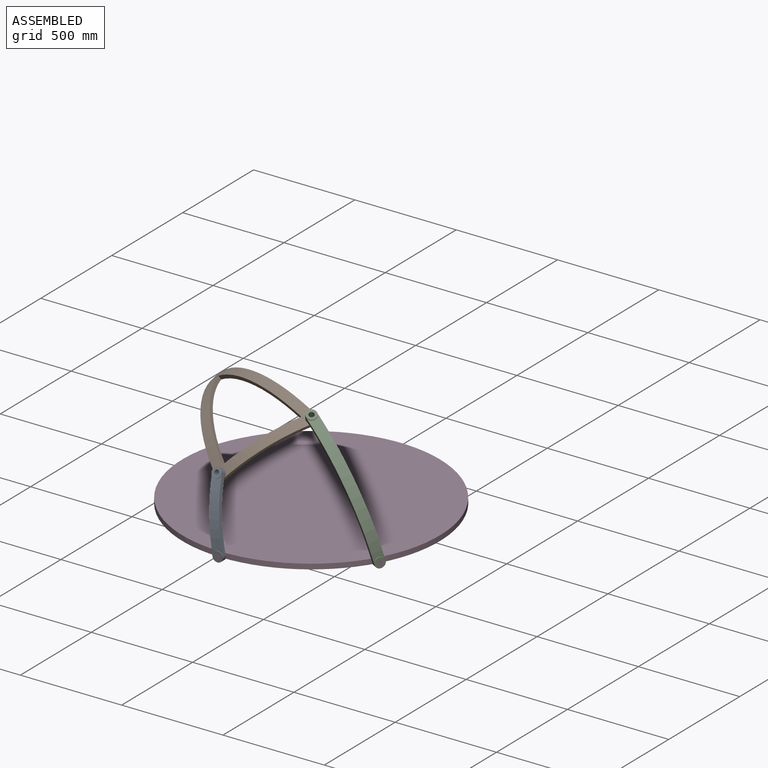
[diagram: assembled view]
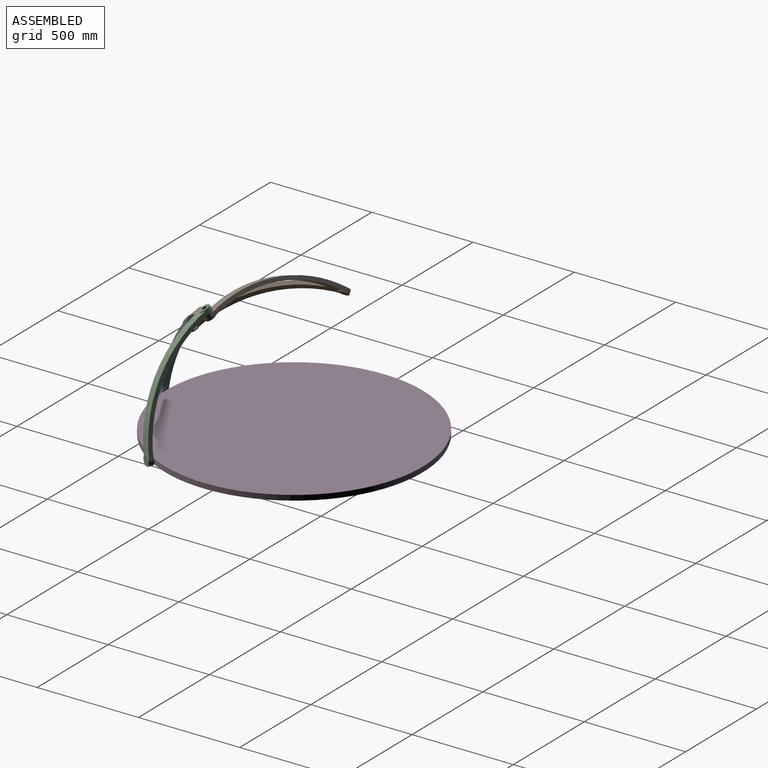
[diagram: assembled view, second angle]
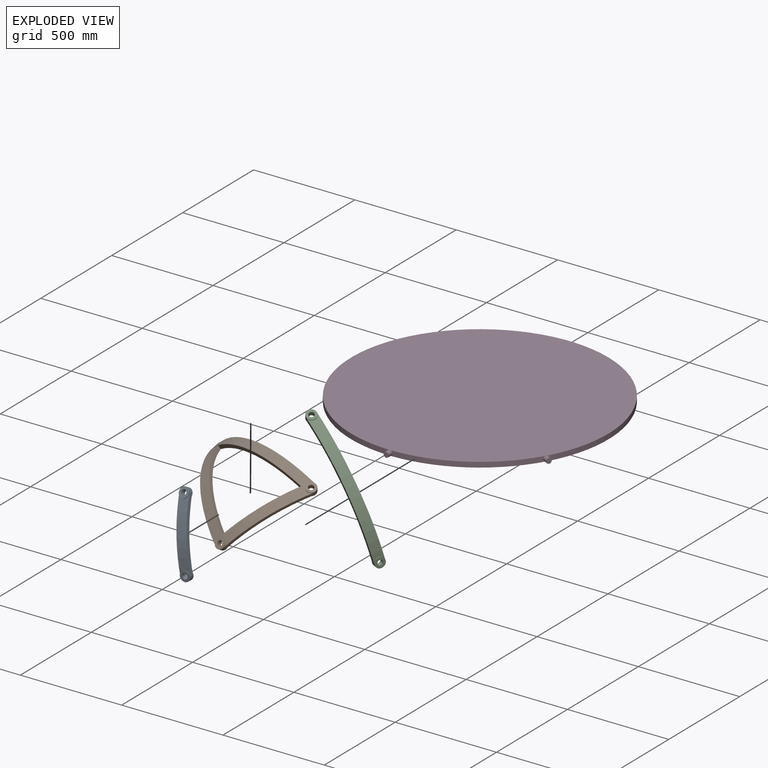
[diagram: exploded view]
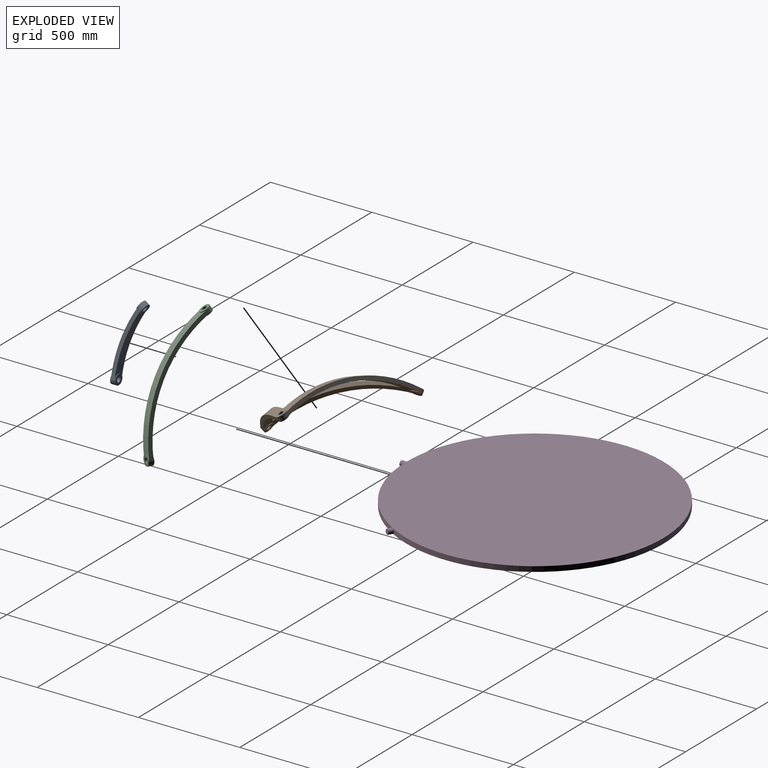
[diagram: exploded view, second angle]
ASSEMBLY  parts=4 mates=4
PART A: 12 faces, bbox 123.2x50.8x377.6 mm
  f0: cylinder r=12.7mm len=25.4mm, axis (1,0,0), area 2026.8mm2, adj f2,f3
  f1: cylinder r=25.4mm len=50.8mm, axis (1,0,0), area 2533mm2, adj f2,f3,f8,f9,f10,f11
  f2: plane 50.8x50.8mm, normal (-1,0,0), area 1520.1mm2, adj f0,f1
  f3: plane 50.8x50.8mm, normal (1,0,0), area 1520.1mm2, adj f0,f1
  f4: plane 50.8x43.99mm, normal (0.87,0,-0.5), area 1520.1mm2, adj f6,f7
  f5: plane 50.8x43.99mm, normal (-0.87,0,0.5), area 1520.1mm2, adj f6,f7
  f6: cylinder r=25.4mm len=56.69mm, axis (0.87,0,-0.5), area 2532.9mm2, adj f4,f5,f8,f9,f10,f11
  f7: cylinder r=12.7mm len=34.7mm, axis (0.87,0,-0.5), area 2026.8mm2, adj f4,f5
  f8: plane 328.61x104.55mm, normal (0,1,0), area 6460.5mm2, adj f1,f6,f10,f11
  f9: plane 328.61x104.55mm, normal (0,-1,0), area 6460.5mm2, adj f1,f6,f10,f11
  f10: cylinder r=657.22mm len=328.61mm, axis (0,1,0), area 15453.5mm2, adj f1,f6,f8,f9
  f11: cylinder r=638.18mm len=319.09mm, axis (0,1,0), area 14946.8mm2, adj f1,f6,f8,f9
PART B: 38 faces, bbox 357x585.3x453.1 mm
  f0: cylinder r=25.4mm len=44.01mm, axis (0.49,-0.87,-0.09), area 10.7mm2, adj f4,f28,f30
  f1: cylinder r=25.4mm len=15.81mm, axis (0.49,-0.87,-0.09), area 1.9mm2, adj f4,f11,f29
  f2: cylinder r=25.4mm len=15.81mm, axis (0.49,-0.87,-0.09), area 1.9mm2, adj f4,f31,f33
  f3: plane 50.61x44.21mm, normal (0.49,-0.87,-0.09), area 2026.8mm2, adj f5
  f4: cone r=0mm half-angle=82.9deg, axis (0.49,-0.87,-0.09), area 2042.6mm2, adj f0,f1,f2,f5
  f5: cylinder r=25.4mm len=55.16mm, axis (0.49,-0.87,-0.09), area 1614.1mm2, adj f3,f4,f24,f25,f32,f35
  f6: plane 351.61x140.8mm, normal (0,1,0), area 7097.6mm2, adj f7,f10,f23,f34
  f7: cylinder r=631.82mm len=406.13mm, axis (0,1,0), area 19945.7mm2, adj f6,f9,f18,f21,f27,f36
  f8: cylinder r=12.7mm len=25.4mm, axis (1,0,0), area 2026.8mm2, adj f14,f15
  f9: cylinder r=25.4mm len=50.8mm, axis (1,0,0), area 1806.5mm2, adj f7,f12,f13,f14,f15,f21,f23,f32
  f10: plane 486.79x304.46mm, normal (-0.62,-0.28,-0.74), area 11504.6mm2, adj f6,f11,f25,f34
  f11: cylinder r=631.82mm len=561.27mm, axis (-0.62,-0.28,-0.74), area 32962.7mm2, adj f1,f10,f18,f20,f24,f29
  f12: plane 28.08x0.63mm, normal (0,1,0), area 10mm2, adj f9,f13,f33
  f13: cylinder r=631.82mm len=28.07mm, axis (0,1,0), area 87.1mm2, adj f9,f12,f37
  f14: plane 50.8x50.8mm, normal (-1,0,0), area 1520.1mm2, adj f8,f9
  f15: plane 50.8x50.8mm, normal (1,0,0), area 1520.1mm2, adj f8,f9
  f16: plane 50.8x38.92mm, normal (0.77,0,-0.64), area 1520.1mm2, adj f18,f19
  f17: plane 50.8x38.92mm, normal (-0.77,0,0.64), area 1520.1mm2, adj f18,f19
  f18: cylinder r=25.4mm len=55.24mm, axis (0.77,0,-0.64), area 1892.4mm2, adj f7,f11,f16,f17,f20,f21,f22,f23
  f19: cylinder r=12.7mm len=35.78mm, axis (0.77,0,-0.64), area 2026.8mm2, adj f16,f17
  f20: plane 26.45x21.38mm, normal (0,1,0), area 12.7mm2, adj f11,f18,f22
  f21: plane 406.13x162.41mm, normal (0,-1,0), area 8276.2mm2, adj f7,f9,f18,f23
  f22: cylinder r=631.82mm len=26.45mm, axis (0,1,0), area 130.3mm2, adj f18,f20,f26
  f23: cylinder r=612.77mm len=393.88mm, axis (0,1,0), area 19488.2mm2, adj f6,f9,f18,f21,f25,f32
  f24: plane 547.18x352.93mm, normal (0.62,0.28,0.74), area 13312.5mm2, adj f5,f11,f18,f25
  f25: cylinder r=612.77mm len=544.77mm, axis (-0.62,-0.28,-0.74), area 32403.2mm2, adj f5,f10,f18,f23,f24,f32
  f26: cylinder r=631.82mm len=35.25mm, axis (-0.62,-0.28,-0.74), area 130.3mm2, adj f18,f22,f27
  f27: plane 32.45x7.76mm, normal (-0.62,-0.28,-0.74), area 12.7mm2, adj f7,f18,f26
  f28: cylinder r=631.82mm len=51.66mm, axis (0,0.1,-1), area 396.2mm2, adj f0,f29,f30
  f29: plane 51.83x32.5mm, normal (0,-0.1,1), area 23mm2, adj f1,f11,f28
  f30: cylinder r=631.82mm len=52.22mm, axis (-0.62,-0.28,-0.74), area 396.3mm2, adj f0,f28,f31
  f31: plane 40.78x36.14mm, normal (-0.62,-0.28,-0.74), area 23mm2, adj f2,f30,f33
  f32: cylinder r=612.77mm len=535.75mm, axis (0,0.1,-1), area 30358.7mm2, adj f5,f9,f23,f25,f34,f35
  f33: cylinder r=631.82mm len=552.24mm, axis (0,0.1,-1), area 30898mm2, adj f2,f9,f12,f31,f34,f35
  f34: plane 486.79x277.86mm, normal (0,-0.1,1), area 10818.7mm2, adj f6,f10,f32,f33
  f35: plane 547.18x330.09mm, normal (0,0.1,-1), area 12518.1mm2, adj f5,f9,f32,f33
  f36: plane 27.94x2.8mm, normal (0,-0.1,1), area 10mm2, adj f7,f9,f37
  f37: cylinder r=631.82mm len=28.77mm, axis (0,0.1,-1), area 87.2mm2, adj f9,f13,f36
PART C: 12 faces, bbox 364.9x50.8x610 mm
  f0: cylinder r=12.7mm len=25.4mm, axis (1,0,0), area 2026.8mm2, adj f2,f3
  f1: cylinder r=25.4mm len=50.8mm, axis (1,0,0), area 2533mm2, adj f2,f3,f8,f9,f10,f11
  f2: plane 50.8x50.8mm, normal (-1,0,0), area 1520.1mm2, adj f0,f1
  f3: plane 50.8x50.8mm, normal (1,0,0), area 1520.1mm2, adj f0,f1
  f4: plane 50.8x43.99mm, normal (0.5,0,-0.87), area 1520.1mm2, adj f6,f7
  f5: plane 50.8x43.99mm, normal (-0.5,0,0.87), area 1520.1mm2, adj f6,f7
  f6: cylinder r=25.4mm len=56.69mm, axis (0.5,0,-0.87), area 2532.9mm2, adj f4,f5,f8,f9,f10,f11
  f7: cylinder r=12.7mm len=34.7mm, axis (0.5,0,-0.87), area 2026.8mm2, adj f4,f5
  f8: plane 569.17x338.14mm, normal (0,1,0), area 12921mm2, adj f1,f6,f10,f11
  f9: plane 569.17x338.14mm, normal (0,-1,0), area 12921mm2, adj f1,f6,f10,f11
  f10: cylinder r=657.22mm len=569.17mm, axis (0,1,0), area 32934.2mm2, adj f1,f6,f8,f9
  f11: cylinder r=638.18mm len=552.68mm, axis (0,1,0), area 31920.8mm2, adj f1,f6,f8,f9
PART D: 8 faces, bbox 1270x1295.4x25.4 mm
  f0: cylinder r=635mm len=549.93mm, axis (0,0,-1), area 16382.8mm2, adj f2,f3,f4,f6
  f1: cylinder r=635mm len=1270mm, axis (0,0,-1), area 83943.8mm2, adj f2,f3,f4,f6
  f2: plane 1270x1270mm, normal (0,0,1), area 1266768.7mm2, adj f0,f1
  f3: plane 1270x1270mm, normal (0,0,-1), area 1266768.7mm2, adj f0,f1
  f4: cylinder r=12.7mm len=34.81mm, axis (0.87,-0.5,0), area 2031.9mm2, adj f0,f1,f5
  f5: plane 25.4x22mm, normal (0.87,-0.5,0), area 506.7mm2, adj f4
  f6: cylinder r=12.7mm len=25.53mm, axis (0,-1,0), area 2031.9mm2, adj f0,f1,f7
  f7: plane 25.4x25.4mm, normal (0,-1,0), area 506.7mm2, adj f6
PLACE A rot(axis=(-0.1,-0.1,0.99),90.6deg) t=(250.09,192.81,173.51)mm
PLACE B rot(axis=(0.08,0.55,0.83),84.6deg) t=(250.09,192.81,173.51)mm
PLACE C rot(axis=(-0.04,-0.13,0.99),150.3deg) t=(250.09,192.81,173.51)mm
PLACE D t=(250.09,192.81,173.51)mm fixed
MATE revolute B.f18 <-> C.f6  axis (0.32,-0.45,0.83) through (451.82,-92.79,703.57)mm
MATE revolute B.f9 <-> A.f6  axis (-0.1,-0.87,0.49) through (185.78,-357.11,484.43)mm
MATE revolute A.f0 <-> D.f6  axis (0,-1,0) through (250.09,-467.59,173.51)mm
MATE revolute C.f0 <-> D.f4  axis (0.87,-0.5,0) through (822.02,-137.39,173.51)mm
